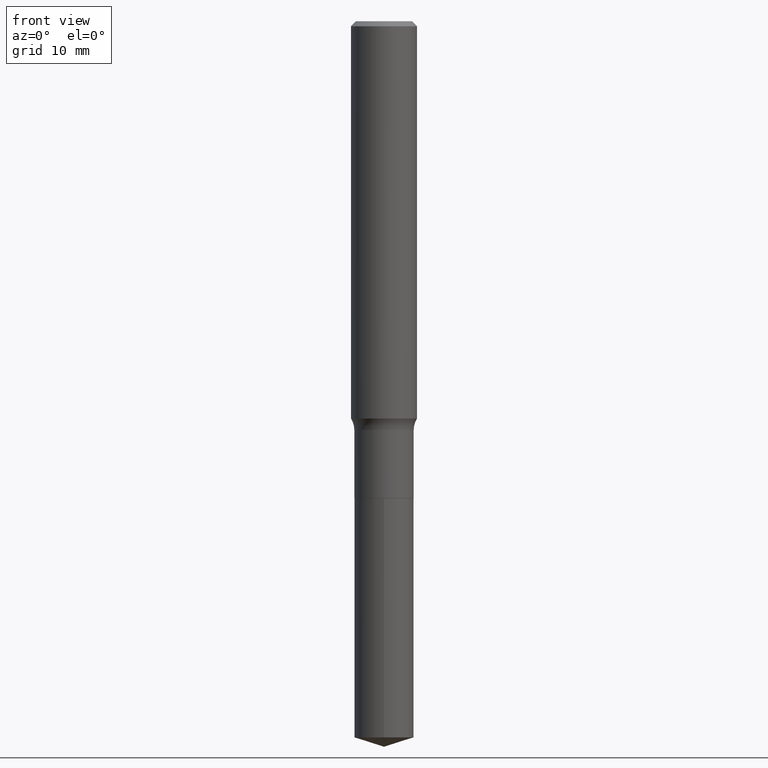
[diagram: clean part render]
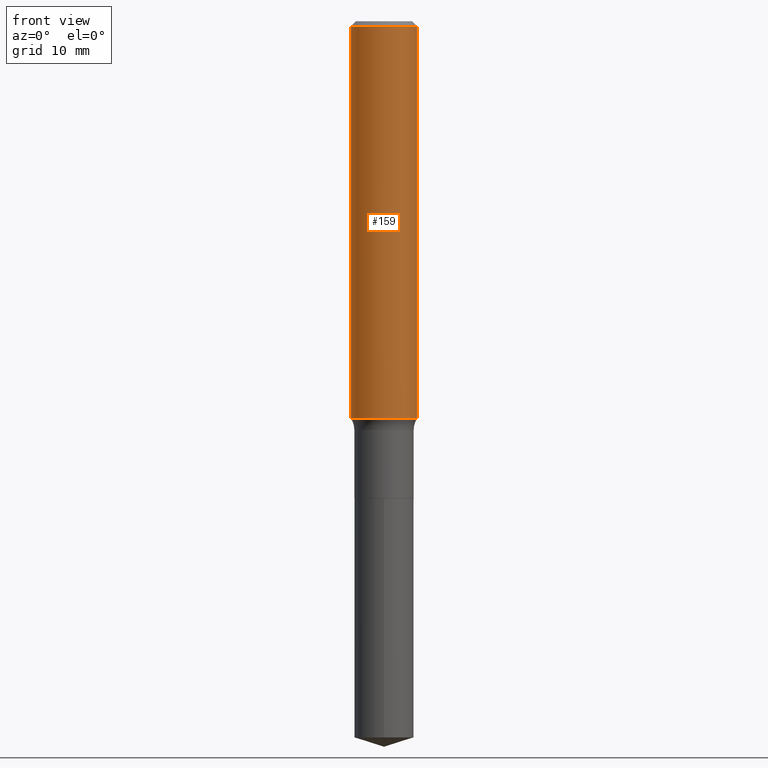
[diagram: same view with one face highlighted and labeled with its STEP entity id]
A machine part, front view. The second image highlights one B-rep face of the part: STEP entity #159.
In plain terms, the highlighted cylindrical surface (edge-blend (fillet) strip) has radius 2.9997 mm, axis along (-0, 0, 1).
Its self-contained STEP definition (entity closure, byte-faithful):
#11 = VERTEX_POINT ( 'NONE', #94 ) ;
#52 = CIRCLE ( 'NONE', #421, 0.1181000000000001632 ) ;
#68 = AXIS2_PLACEMENT_3D ( 'NONE', #369, #302, #331 ) ;
#82 = EDGE_CURVE ( 'NONE', #383, #437, #179, .T. ) ;
#86 = VECTOR ( 'NONE', #169, 39.37007874015748143 ) ;
#94 = CARTESIAN_POINT ( 'NONE',  ( 0.1180999999999999966, -8.865394841523547570E-16, -0.01771500000000010913 ) ) ;
#114 = EDGE_CURVE ( 'NONE', #437, #11, #366, .T. ) ;
#141 = CARTESIAN_POINT ( 'NONE',  ( 0.1181000000000001632, -5.792542221010220447E-15, -1.422850030303040914 ) ) ;
#144 = DIRECTION ( 'NONE',  ( 1.000000000000000000, -6.982962677686266711E-15, 0.000000000000000000 ) ) ;
#149 = VECTOR ( 'NONE', #422, 39.37007874015748143 ) ;
#150 = DIRECTION ( 'NONE',  ( 1.000000000000000000, -6.982962677686263555E-15, 0.000000000000000000 ) ) ;
#157 = CARTESIAN_POINT ( 'NONE',  ( -0.1181000000000001632, -4.128703357842792410E-15, -1.422850030303040914 ) ) ;
#159 = ADVANCED_FACE ( 'NONE', ( #414 ), #221, .T. ) ;
#163 = ORIENTED_EDGE ( 'NONE', *, *, #353, .T. ) ;
#169 = DIRECTION ( 'NONE',  ( -2.445468806185136877E-29, 3.491481338843145188E-15, 1.000000000000000000 ) ) ;
#179 = LINE ( 'NONE', #288, #86 ) ;
#182 = DIRECTION ( 'NONE',  ( -2.445468806185136597E-29, 3.491481338843145583E-15, 1.000000000000000000 ) ) ;
#210 = ORIENTED_EDGE ( 'NONE', *, *, #114, .F. ) ;
#221 = CYLINDRICAL_SURFACE ( 'NONE', #68, 0.1181000000000000799 ) ;
#224 = AXIS2_PLACEMENT_3D ( 'NONE', #409, #182, #144 ) ;
#231 = VERTEX_POINT ( 'NONE', #141 ) ;
#288 = CARTESIAN_POINT ( 'NONE',  ( -0.1181000000000000799, 8.391509709326788873E-16, -5.809262341591047988E-30 ) ) ;
#302 = DIRECTION ( 'NONE',  ( -2.445468806185136597E-29, 3.491481338843145583E-15, 1.000000000000000000 ) ) ;
#308 = EDGE_LOOP ( 'NONE', ( #361, #163, #467, #210 ) ) ;
#309 = CARTESIAN_POINT ( 'NONE',  ( 0.1181000000000000799, -8.246878922347486570E-16, 5.758764772215004644E-30 ) ) ;
#325 = CARTESIAN_POINT ( 'NONE',  ( -0.1180999999999999966, -1.675701989413859614E-15, -0.01771500000000010913 ) ) ;
#331 = DIRECTION ( 'NONE',  ( 1.000000000000000000, -6.982962677686266711E-15, 4.876176775795936353E-29 ) ) ;
#348 = CARTESIAN_POINT ( 'NONE',  ( 3.479535364985662508E-29, -4.967854328775472184E-15, -1.422850030303040914 ) ) ;
#353 = EDGE_CURVE ( 'NONE', #383, #231, #52, .T. ) ;
#361 = ORIENTED_EDGE ( 'NONE', *, *, #82, .F. ) ;
#366 = CIRCLE ( 'NONE', #224, 0.1180999999999999966 ) ;
#369 = CARTESIAN_POINT ( 'NONE',  ( 0.000000000000000000, 0.000000000000000000, 0.000000000000000000 ) ) ;
#382 = LINE ( 'NONE', #309, #149 ) ;
#383 = VERTEX_POINT ( 'NONE', #157 ) ;
#387 = EDGE_CURVE ( 'NONE', #231, #11, #382, .T. ) ;
#388 = DIRECTION ( 'NONE',  ( -2.445468806185136597E-29, 3.491481338843145583E-15, 1.000000000000000000 ) ) ;
#409 = CARTESIAN_POINT ( 'NONE',  ( 4.332147990156996744E-31, -6.185159191760670395E-17, -0.01771500000000010913 ) ) ;
#414 = FACE_OUTER_BOUND ( 'NONE', #308, .T. ) ;
#421 = AXIS2_PLACEMENT_3D ( 'NONE', #348, #388, #150 ) ;
#422 = DIRECTION ( 'NONE',  ( -2.445468806185136877E-29, 3.491481338843145188E-15, 1.000000000000000000 ) ) ;
#437 = VERTEX_POINT ( 'NONE', #325 ) ;
#467 = ORIENTED_EDGE ( 'NONE', *, *, #387, .T. ) ;